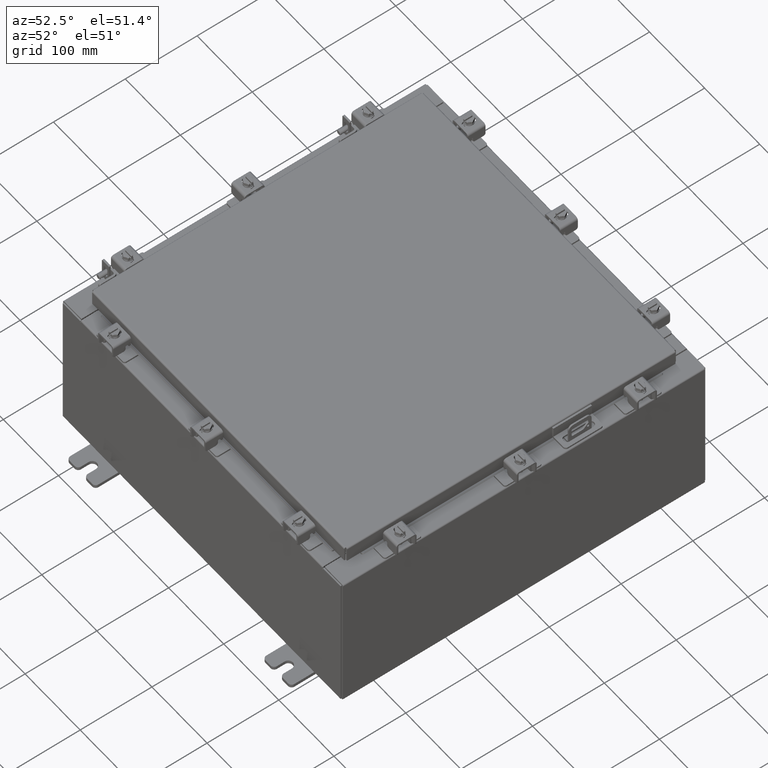
[diagram: clean part render]
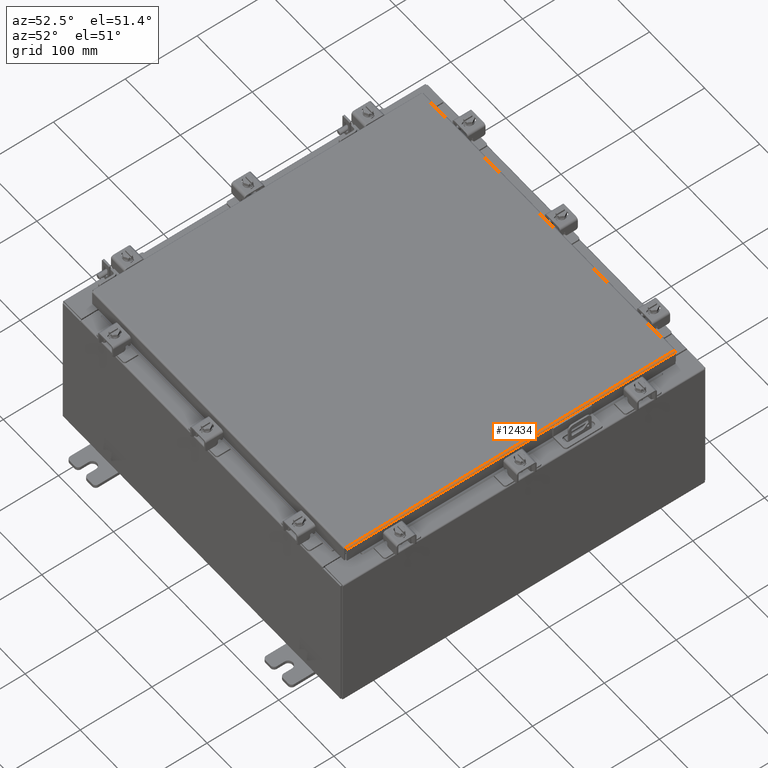
[diagram: same view with one face highlighted and labeled with its STEP entity id]
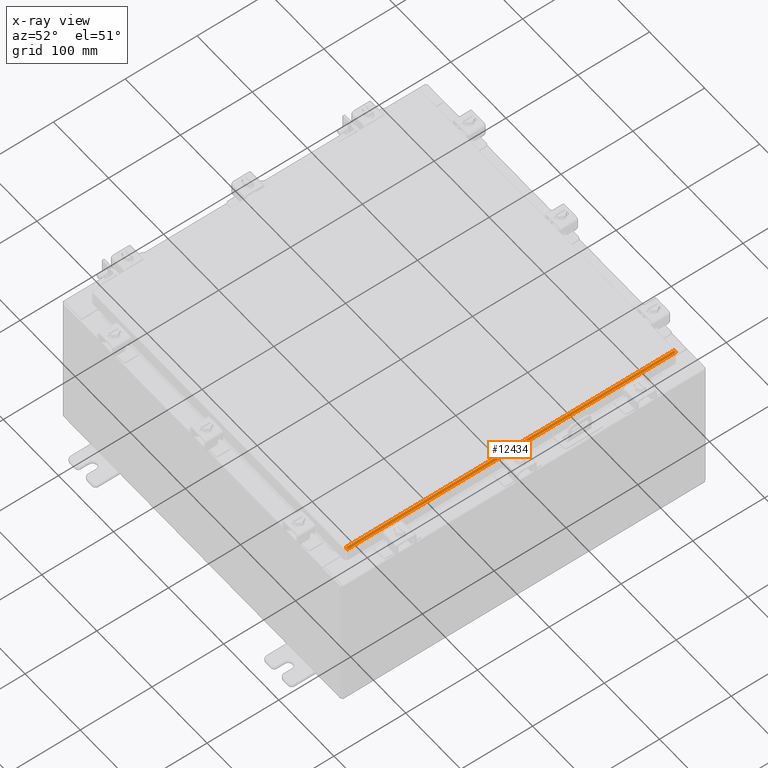
[diagram: x-ray of the same camera — body ghosted, the highlighted face saturated]
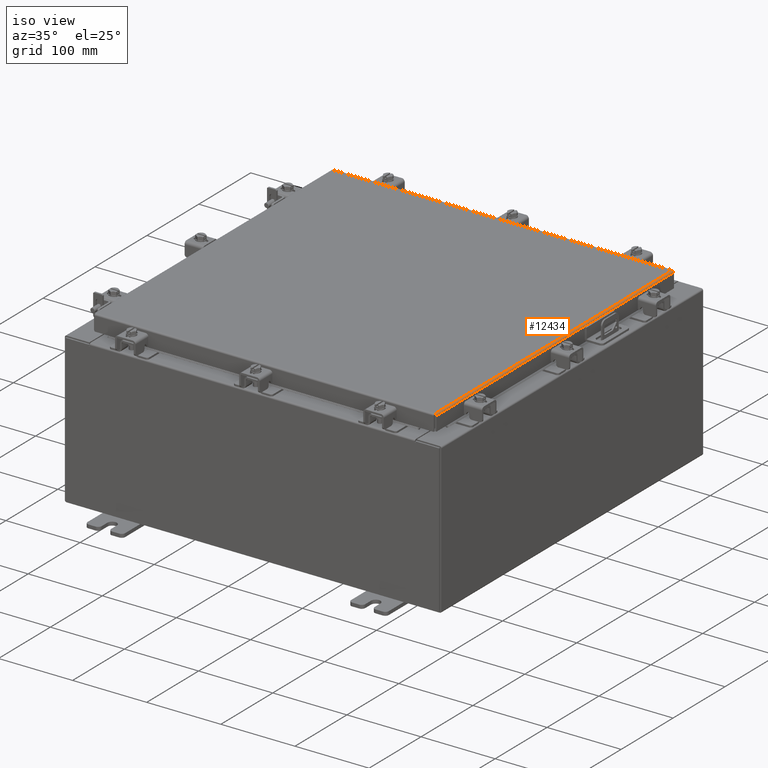
[diagram: same view with one face highlighted and labeled with its STEP entity id]
A machine part, auxiliary view. The second image highlights one B-rep face of the part: STEP entity #12434.
The next image is the same camera in x-ray: the body ghosted, the highlighted face saturated — about 0% of this face is hidden behind the body in this view.
A second angle (iso view) of the same face is appended — the face is thin or edge-on in the first view.
In plain terms, the highlighted cylindrical surface (edge-blend (fillet) strip) has radius 2.2276 mm, axis along (-0, -1, -0).
Its self-contained STEP definition (entity closure, byte-faithful):
#593 = CARTESIAN_POINT ( 'NONE',  ( 9.094000000000001200, -5.269035934039632300E-018, -0.08769999999999918100 ) ) ;
#1075 = DIRECTION ( 'NONE',  ( 0.0000000000000000000, 1.000000000000000000, 0.0000000000000000000 ) ) ;
#1357 = CARTESIAN_POINT ( 'NONE',  ( 9.094000000000001200, 9.005157864376268900, -0.08769999999999918100 ) ) ;
#1391 = CARTESIAN_POINT ( 'NONE',  ( 9.094000000000001200, -9.005157864376267100, -0.08769999999999918100 ) ) ;
#1538 = CARTESIAN_POINT ( 'NONE',  ( 9.050467384578528400, -9.005919288125422600, -0.01106893374133114200 ) ) ;
#1576 = CARTESIAN_POINT ( 'NONE',  ( 9.006300000000001300, 9.006299999999999500, 0.0000000000000000000 ) ) ;
#2689 = CYLINDRICAL_SURFACE ( 'NONE', #10389, 0.08770000000000026400 ) ;
#3230 = CARTESIAN_POINT ( 'NONE',  ( 9.094000000000001200, -9.005253042344913100, -0.07622009684500395700 ) ) ;
#3314 = CARTESIAN_POINT ( 'NONE',  ( 9.017779903154993400, -9.006204822031355300, -1.696066759738335700E-016 ) ) ;
#3488 = VERTEX_POINT ( 'NONE', #17755 ) ;
#4807 = CARTESIAN_POINT ( 'NONE',  ( 9.006300000000001300, 9.006299999999999500, 0.0000000000000000000 ) ) ;
#5292 = B_SPLINE_CURVE_WITH_KNOTS ( 'NONE', 3,
 ( #17190, #3230, #20675, #10231, #22425, #12003, #1538, #13766, #3314, #15505 ),
 .UNSPECIFIED., .F., .F.,
 ( 4, 2, 2, 2, 4 ),
 ( 0.0000000000000000000, 0.2500000000000000000, 0.5000000000000000000, 0.7500000000000000000, 1.000000000000000000 ),
 .UNSPECIFIED. ) ;
#5359 = VECTOR ( 'NONE', #11040, 39.37007874015748100 ) ;
#5960 = EDGE_CURVE ( 'NONE', #12276, #9036, #19249, .T. ) ;
#6556 = CARTESIAN_POINT ( 'NONE',  ( 9.029255289458310700, 9.006109644062714600, -0.002282596256189017100 ) ) ;
#7827 = CARTESIAN_POINT ( 'NONE',  ( 9.006300000000001300, -9.006299999999999500, -0.08770000000000026400 ) ) ;
#8310 = CARTESIAN_POINT ( 'NONE',  ( 9.060195747341802900, 9.005824110156780200, -0.01756921792168066000 ) ) ;
#9036 = VERTEX_POINT ( 'NONE', #1391 ) ;
#10063 = CARTESIAN_POINT ( 'NONE',  ( 9.082931066258671700, 9.005538576250847500, -0.04353261542147437300 ) ) ;
#10231 = CARTESIAN_POINT ( 'NONE',  ( 9.082931066258664600, -9.005538576250842200, -0.04353261542147005700 ) ) ;
#10389 = AXIS2_PLACEMENT_3D ( 'NONE', #7827, #13019, #18293 ) ;
#11040 = DIRECTION ( 'NONE',  ( -1.693590113897317100E-031, -1.000000000000000000, 6.008022858289562200E-017 ) ) ;
#11585 = ORIENTED_EDGE ( 'NONE', *, *, #15959, .F. ) ;
#11820 = CARTESIAN_POINT ( 'NONE',  ( 9.094000000000001200, 9.005253042344913100, -0.07622009684501077100 ) ) ;
#12003 = CARTESIAN_POINT ( 'NONE',  ( 9.060195747341801100, -9.005824110156778400, -0.01756921792167882200 ) ) ;
#12276 = VERTEX_POINT ( 'NONE', #17919 ) ;
#12434 = ADVANCED_FACE ( 'NONE', ( #16618 ), #2689, .T. ) ;
#12668 = ORIENTED_EDGE ( 'NONE', *, *, #21534, .F. ) ;
#12883 = ORIENTED_EDGE ( 'NONE', *, *, #17108, .F. ) ;
#13019 = DIRECTION ( 'NONE',  ( -0.0000000000000000000, -1.000000000000000000, -0.0000000000000000000 ) ) ;
#13766 = CARTESIAN_POINT ( 'NONE',  ( 9.029255289458308900, -9.006109644062712900, -0.002282596256188758200 ) ) ;
#15505 = CARTESIAN_POINT ( 'NONE',  ( 9.006300000000001300, -9.006299999999999500, 0.0000000000000000000 ) ) ;
#15959 = EDGE_CURVE ( 'NONE', #19486, #12276, #16277, .T. ) ;
#16277 = B_SPLINE_CURVE_WITH_KNOTS ( 'NONE', 3,
 ( #4807, #22173, #6556, #18757, #8310, #20495, #10063, #22243, #11820, #1357 ),
 .UNSPECIFIED., .F., .F.,
 ( 4, 2, 2, 2, 4 ),
 ( 0.0000000000000000000, 0.2500000000000000000, 0.5000000000000000000, 0.7500000000000000000, 1.000000000000000000 ),
 .UNSPECIFIED. ) ;
#16618 = FACE_OUTER_BOUND ( 'NONE', #17678, .T. ) ;
#17108 = EDGE_CURVE ( 'NONE', #3488, #19486, #21253, .T. ) ;
#17190 = CARTESIAN_POINT ( 'NONE',  ( 9.094000000000001200, -9.005157864376267100, -0.08769999999999918100 ) ) ;
#17443 = ORIENTED_EDGE ( 'NONE', *, *, #5960, .F. ) ;
#17678 = EDGE_LOOP ( 'NONE', ( #12883, #12668, #17443, #11585 ) ) ;
#17755 = CARTESIAN_POINT ( 'NONE',  ( 9.006300000000001300, -9.006299999999999500, 0.0000000000000000000 ) ) ;
#17919 = CARTESIAN_POINT ( 'NONE',  ( 9.094000000000001200, 9.005157864376268900, -0.08769999999999918100 ) ) ;
#18293 = DIRECTION ( 'NONE',  ( 1.000000000000000000, 0.0000000000000000000, 2.725618009642215600E-015 ) ) ;
#18487 = CARTESIAN_POINT ( 'NONE',  ( 9.006300000000001300, -9.006299999999999500, 0.0000000000000000000 ) ) ;
#18757 = CARTESIAN_POINT ( 'NONE',  ( 9.050467384578526600, 9.005919288125422600, -0.01106893374133231800 ) ) ;
#19249 = LINE ( 'NONE', #593, #5359 ) ;
#19486 = VERTEX_POINT ( 'NONE', #1576 ) ;
#20495 = CARTESIAN_POINT ( 'NONE',  ( 9.076430782078322300, 9.005633754219490000, -0.03380425265820177800 ) ) ;
#20675 = CARTESIAN_POINT ( 'NONE',  ( 9.091717403743809100, -9.005348220313557300, -0.06474471054168821900 ) ) ;
#20707 = VECTOR ( 'NONE', #1075, 39.37007874015748100 ) ;
#21253 = LINE ( 'NONE', #18487, #20707 ) ;
#21534 = EDGE_CURVE ( 'NONE', #9036, #3488, #5292, .T. ) ;
#22173 = CARTESIAN_POINT ( 'NONE',  ( 9.017779903154993400, 9.006204822031353500, -1.701735877889249200E-016 ) ) ;
#22243 = CARTESIAN_POINT ( 'NONE',  ( 9.091717403743812700, 9.005348220313560900, -0.06474471054169418600 ) ) ;
#22425 = CARTESIAN_POINT ( 'NONE',  ( 9.076430782078320500, -9.005633754219491700, -0.03380425265819837100 ) ) ;